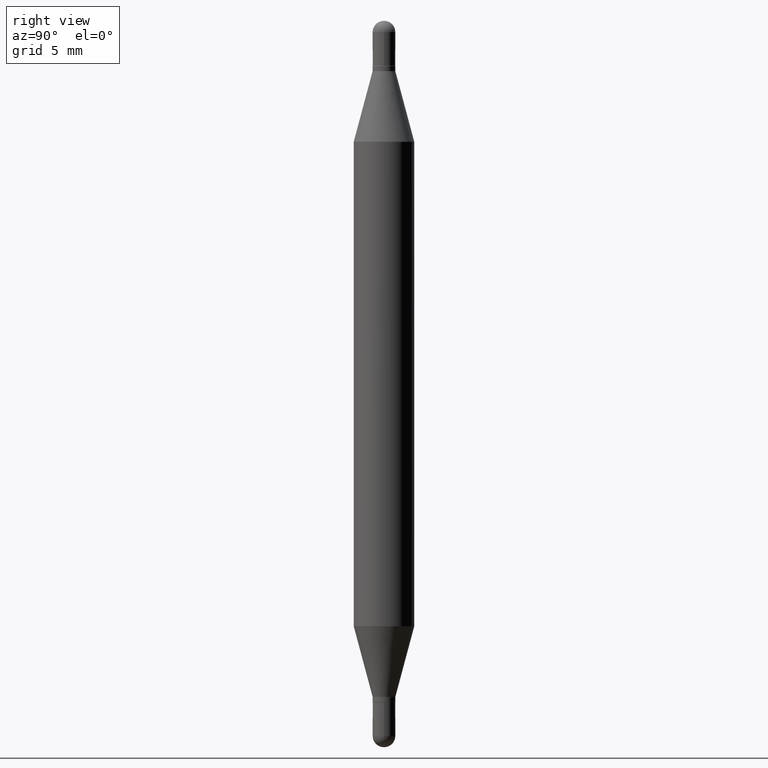
[diagram: clean part render]
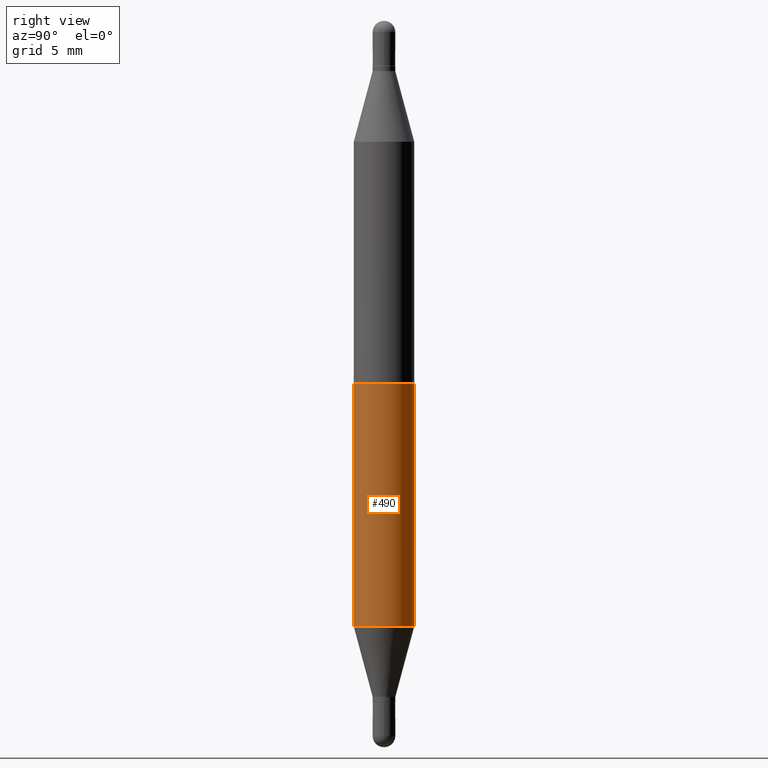
[diagram: same view with one face highlighted and labeled with its STEP entity id]
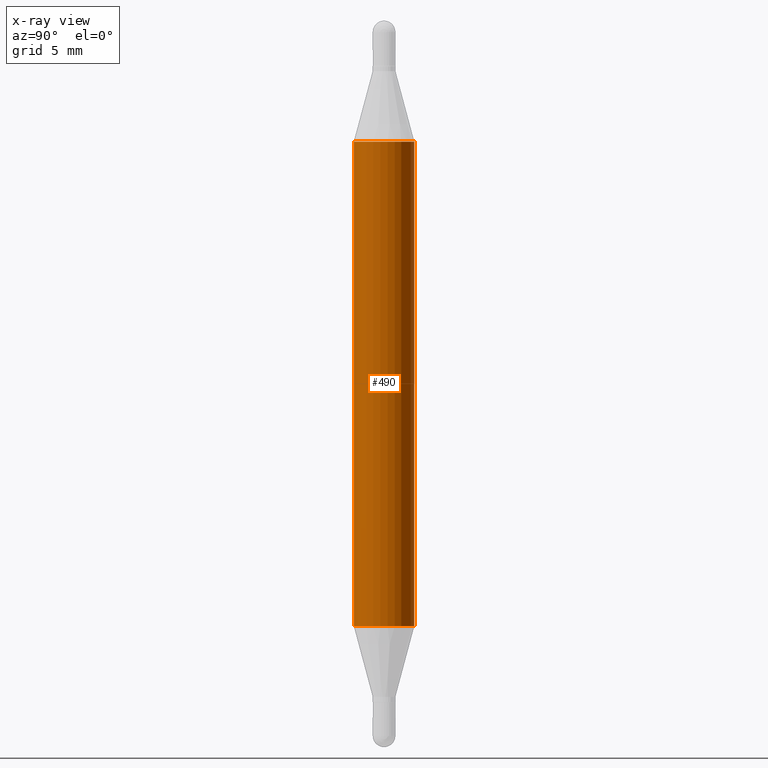
[diagram: x-ray of the same camera — body ghosted, the highlighted face saturated]
A machine part, right view. The second image highlights one B-rep face of the part: STEP entity #490.
The next image is the same camera in x-ray: the body ghosted, the highlighted face saturated — about 0% of this face is hidden behind the body in this view.
In plain terms, the highlighted cylindrical surface (edge-blend (fillet) strip) has radius 1.5875 mm, axis along (-0, -0, -1).
Its self-contained STEP definition (entity closure, byte-faithful):
#4 = DIRECTION ( 'NONE',  ( -2.445459728280500552E-29, -3.479601466901707095E-15, -1.000000000000000000 ) ) ;
#20 = ORIENTED_EDGE ( 'NONE', *, *, #649, .F. ) ;
#47 = DIRECTION ( 'NONE',  ( 2.445459728280500552E-29, 3.479601466901707095E-15, 1.000000000000000000 ) ) ;
#64 = VERTEX_POINT ( 'NONE', #437 ) ;
#106 = CARTESIAN_POINT ( 'NONE',  ( -4.364351673553610517E-16, -0.06250000000000435763, -1.250263415964434799 ) ) ;
#124 = VECTOR ( 'NONE', #4, 39.37007874015748143 ) ;
#126 = CIRCLE ( 'NONE', #699, 0.06250000000000000000 ) ;
#131 = CARTESIAN_POINT ( 'NONE',  ( 3.057468833483437762E-29, -8.779034381623444770E-16, -0.2497365840355653399 ) ) ;
#162 = EDGE_CURVE ( 'NONE', #64, #681, #338, .T. ) ;
#184 = VERTEX_POINT ( 'NONE', #263 ) ;
#241 = DIRECTION ( 'NONE',  ( -2.445459728280500552E-29, 3.491494338919266742E-15, 1.000000000000000000 ) ) ;
#263 = CARTESIAN_POINT ( 'NONE',  ( 4.287811248607512417E-16, 0.06249999999999911876, -0.2497365840355655620 ) ) ;
#283 = CIRCLE ( 'NONE', #984, 0.06250000000000000000 ) ;
#338 = LINE ( 'NONE', #861, #124 ) ;
#368 = ORIENTED_EDGE ( 'NONE', *, *, #817, .F. ) ;
#409 = AXIS2_PLACEMENT_3D ( 'NONE', #819, #935, #1018 ) ;
#437 = CARTESIAN_POINT ( 'NONE',  ( -4.364351673553610517E-16, -0.06250000000000087430, -0.2497365840355651456 ) ) ;
#458 = VECTOR ( 'NONE', #879, 39.37007874015748143 ) ;
#471 = VERTEX_POINT ( 'NONE', #581 ) ;
#482 = CARTESIAN_POINT ( 'NONE',  ( 3.057468833483437762E-29, -4.365287638997689123E-15, -1.250263415964435021 ) ) ;
#490 = ADVANCED_FACE ( 'NONE', ( #928 ), #734, .T. ) ;
#507 = EDGE_CURVE ( 'NONE', #681, #471, #283, .T. ) ;
#563 = DIRECTION ( 'NONE',  ( -6.982962677686265922E-15, -1.000000000000000000, 3.278217592397115862E-15 ) ) ;
#581 = CARTESIAN_POINT ( 'NONE',  ( 4.287811248607390637E-16, 0.06249999999999563544, -1.250263415964435243 ) ) ;
#621 = CARTESIAN_POINT ( 'NONE',  ( 4.287811248607206733E-16, 0.06249999999999477501, -1.500000000000000666 ) ) ;
#627 = ORIENTED_EDGE ( 'NONE', *, *, #162, .T. ) ;
#649 = EDGE_CURVE ( 'NONE', #184, #471, #980, .T. ) ;
#681 = VERTEX_POINT ( 'NONE', #106 ) ;
#699 = AXIS2_PLACEMENT_3D ( 'NONE', #131, #47, #563 ) ;
#734 = CYLINDRICAL_SURFACE ( 'NONE', #409, 0.06250000000000000000 ) ;
#817 = EDGE_CURVE ( 'NONE', #64, #184, #126, .T. ) ;
#819 = CARTESIAN_POINT ( 'NONE',  ( 0.000000000000000000, -5.228321854365732350E-15, -1.500000000000000444 ) ) ;
#861 = CARTESIAN_POINT ( 'NONE',  ( -4.364351673553916201E-16, -0.06250000000000521805, -1.500000000000000222 ) ) ;
#879 = DIRECTION ( 'NONE',  ( -2.445459728280500552E-29, -3.479601466901707095E-15, -1.000000000000000000 ) ) ;
#928 = FACE_OUTER_BOUND ( 'NONE', #1010, .T. ) ;
#935 = DIRECTION ( 'NONE',  ( -2.445459728280500552E-29, -3.479601466901707095E-15, -1.000000000000000000 ) ) ;
#953 = ORIENTED_EDGE ( 'NONE', *, *, #507, .T. ) ;
#980 = LINE ( 'NONE', #621, #458 ) ;
#984 = AXIS2_PLACEMENT_3D ( 'NONE', #482, #241, #1107 ) ;
#1010 = EDGE_LOOP ( 'NONE', ( #20, #368, #627, #953 ) ) ;
#1018 = DIRECTION ( 'NONE',  ( -6.982962677686265922E-15, -1.000000000000000000, 4.370956789862821150E-15 ) ) ;
#1107 = DIRECTION ( 'NONE',  ( -6.982962677686265922E-15, -1.000000000000000000, 4.370956789862821150E-15 ) ) ;